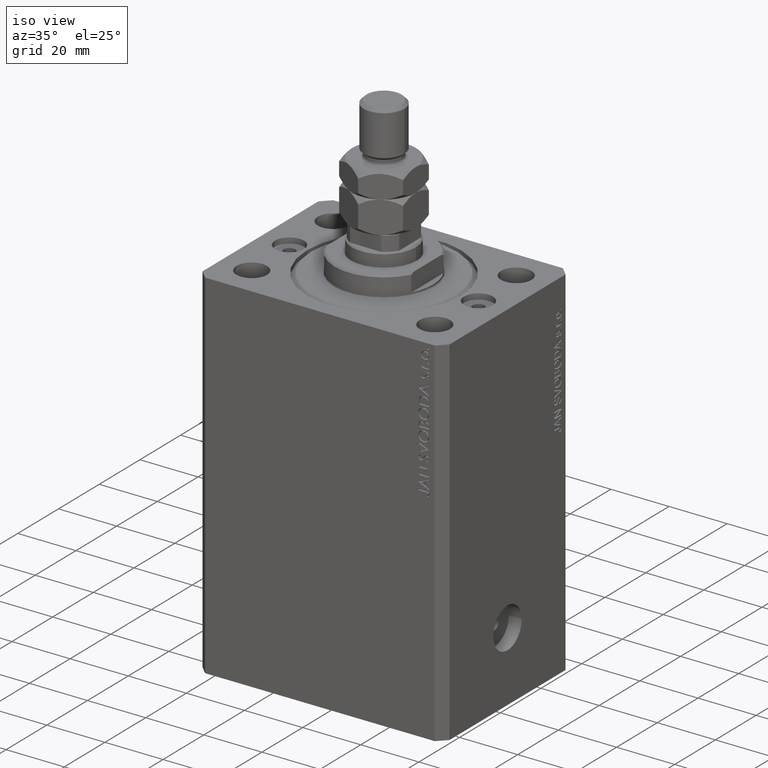
[diagram: clean part render]
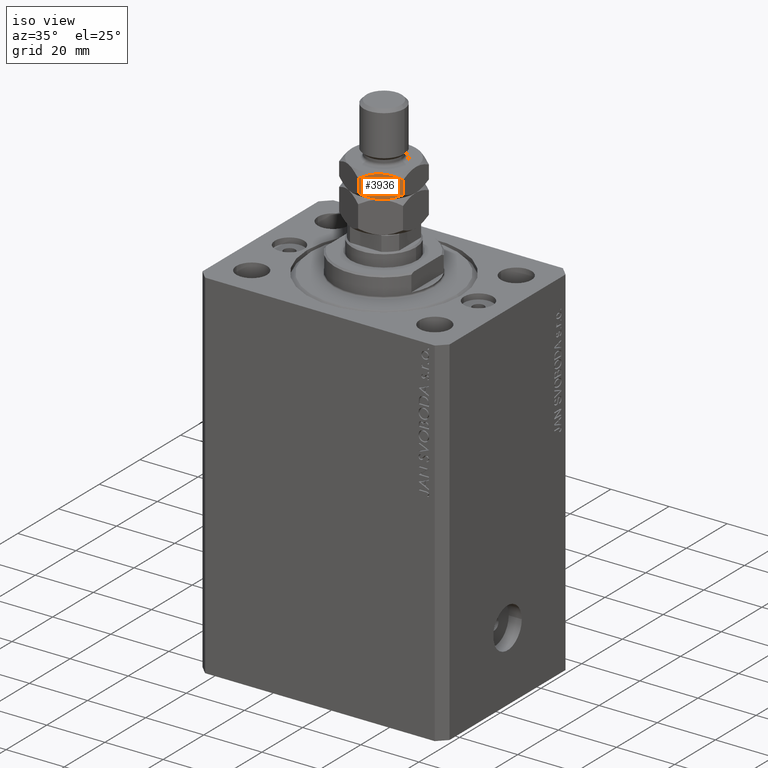
[diagram: same view with one face highlighted and labeled with its STEP entity id]
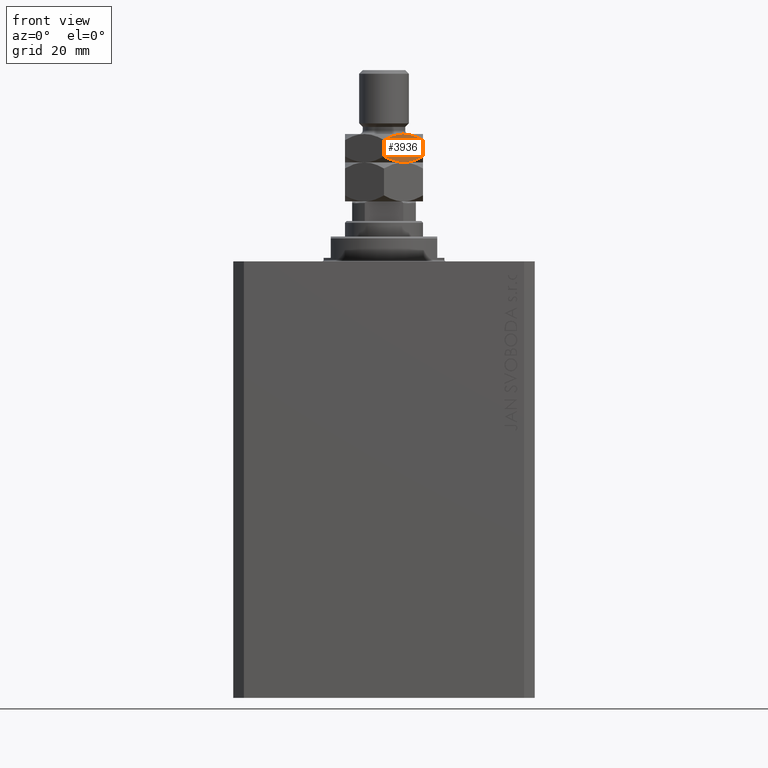
[diagram: same view with one face highlighted and labeled with its STEP entity id]
A machine part, iso view. The second image highlights one B-rep face of the part: STEP entity #3936.
A second angle (front view) of the same face is appended — the face is thin or edge-on in the first view.
In plain terms, the highlighted planar face has unit normal (-0.5, 0.866, 0).
Its self-contained STEP definition (entity closure, byte-faithful):
#305 = B_SPLINE_CURVE_WITH_KNOTS ( 'NONE', 3,
 ( #18980, #29643, #26168, #12006, #37303, #8980 ),
 .UNSPECIFIED., .F., .F.,
 ( 4, 2, 4 ),
 ( 0.006583488920348300362, 0.009852050593448711396, 0.01312061226654912330 ),
 .UNSPECIFIED. ) ;
#1846 = CARTESIAN_POINT ( 'NONE',  ( 10.13752086928278295, -6.848805519375900985, 12.20375336388174681 ) ) ;
#2073 = CARTESIAN_POINT ( 'NONE',  ( 7.420105971005177103, -8.417705742396377033, 11.20812207486707557 ) ) ;
#2301 = CARTESIAN_POINT ( 'NONE',  ( 6.470625887979892354, -8.965888323921216596, 11.04365929743512531 ) ) ;
#2330 = DIRECTION ( 'NONE',  ( -0.8660254037844384856, -0.5000000000000002220, 0.000000000000000000 ) ) ;
#2758 = CARTESIAN_POINT ( 'NONE',  ( 10.99999999999999645, -6.350852961085881709, 12.70170592217176164 ) ) ;
#3404 = VERTEX_POINT ( 'NONE', #27106 ) ;
#3618 = ORIENTED_EDGE ( 'NONE', *, *, #36333, .F. ) ;
#3936 = ADVANCED_FACE ( 'NONE', ( #30653 ), #44817, .F. ) ;
#5399 = CARTESIAN_POINT ( 'NONE',  ( 10.99999999999999645, -6.350852961085881709, 17.29829407782823480 ) ) ;
#7438 = B_SPLINE_CURVE_WITH_KNOTS ( 'NONE', 3,
 ( #19099, #12354, #40913, #40222, #8419, #5399 ),
 .UNSPECIFIED., .F., .F.,
 ( 4, 2, 4 ),
 ( 0.006583488920348303831, 0.009852050593448713131, 0.01312061226654912330 ),
 .UNSPECIFIED. ) ;
#8419 = CARTESIAN_POINT ( 'NONE',  ( 10.13851939750335163, -6.848229018838960513, 17.79567013558139621 ) ) ;
#8710 = CARTESIAN_POINT ( 'NONE',  ( 5.499999999999998224, -9.526279441628817679, 19.00000000000000000 ) ) ;
#8980 = CARTESIAN_POINT ( 'NONE',  ( -6.797443497229144639E-16, -12.70170592217176697, 12.70170592217176697 ) ) ;
#9939 = ORIENTED_EDGE ( 'NONE', *, *, #11047, .F. ) ;
#11047 = EDGE_CURVE ( 'NONE', #30529, #44411, #23847, .T. ) ;
#12006 = CARTESIAN_POINT ( 'NONE',  ( 1.748214531935804894, -11.69237379155740975, 11.77768480452202837 ) ) ;
#12354 = CARTESIAN_POINT ( 'NONE',  ( 6.456670474420574735, -8.973945485696335211, 18.99999999999999289 ) ) ;
#12422 = CARTESIAN_POINT ( 'NONE',  ( 4.529374112020106757, -10.08667055933643830, 18.95634070256486936 ) ) ;
#12735 = CARTESIAN_POINT ( 'NONE',  ( 5.499999999999998224, -9.526279441628817679, 19.00000000000000000 ) ) ;
#13012 = DIRECTION ( 'NONE',  ( -0.5000000000000003331, 0.8660254037844385966, 0.000000000000000000 ) ) ;
#13082 = CARTESIAN_POINT ( 'NONE',  ( -1.114322647986502597E-15, -12.70170592217176697, 17.29829407782823125 ) ) ;
#17370 = EDGE_CURVE ( 'NONE', #44411, #25275, #7438, .T. ) ;
#17888 = EDGE_LOOP ( 'NONE', ( #23508, #38238, #33473, #9939, #35118, #3618 ) ) ;
#18364 = EDGE_CURVE ( 'NONE', #30529, #34936, #30302, .T. ) ;
#18791 = EDGE_CURVE ( 'NONE', #25275, #3404, #39895, .T. ) ;
#18980 = CARTESIAN_POINT ( 'NONE',  ( 5.499999999999994671, -9.526279441628823008, 11.00000000000000000 ) ) ;
#19099 = CARTESIAN_POINT ( 'NONE',  ( 5.499999999999998224, -9.526279441628817679, 19.00000000000000000 ) ) ;
#19633 = CARTESIAN_POINT ( 'NONE',  ( 3.115032419653386064, -10.90324111615047187, 18.67178078790958295 ) ) ;
#20889 = CARTESIAN_POINT ( 'NONE',  ( -1.239917741184855327E-15, -12.70170592217176697, 19.00000000000000000 ) ) ;
#21340 = DIRECTION ( 'NONE',  ( -0.000000000000000000, -0.000000000000000000, -1.000000000000000000 ) ) ;
#21594 = CARTESIAN_POINT ( 'NONE',  ( -6.797443497229144639E-16, -12.70170592217176697, 12.70170592217176697 ) ) ;
#22239 = CARTESIAN_POINT ( 'NONE',  ( 10.99999999999999645, -6.350852961085881709, 19.00000000000000000 ) ) ;
#22518 = CARTESIAN_POINT ( 'NONE',  ( 5.499999999999994671, -9.526279441628823008, 11.00000000000000000 ) ) ;
#22958 = CARTESIAN_POINT ( 'NONE',  ( 5.499999999999994671, -9.526279441628823008, 11.00000000000000000 ) ) ;
#23508 = ORIENTED_EDGE ( 'NONE', *, *, #36059, .F. ) ;
#23778 = CARTESIAN_POINT ( 'NONE',  ( -1.239917741184855327E-15, -12.70170592217176697, 19.00000000000000000 ) ) ;
#23847 = B_SPLINE_CURVE_WITH_KNOTS ( 'NONE', 3,
 ( #37266, #40521, #43765, #19633, #26586, #12422, #34015, #8710 ),
 .UNSPECIFIED., .F., .F.,
 ( 4, 2, 2, 4 ),
 ( 2.544311317622334175E-07, 0.003291871675740033840, 0.004937680298044169920, 0.006583488920348303831 ),
 .UNSPECIFIED. ) ;
#25275 = VERTEX_POINT ( 'NONE', #43123 ) ;
#26168 = CARTESIAN_POINT ( 'NONE',  ( 3.602926119288149653, -10.62155555733041901, 11.16890860836476307 ) ) ;
#26204 = VERTEX_POINT ( 'NONE', #22518 ) ;
#26450 = CARTESIAN_POINT ( 'NONE',  ( 7.884967580346608607, -8.149317767107175925, 11.32821921209040283 ) ) ;
#26586 = CARTESIAN_POINT ( 'NONE',  ( 3.579894028994818900, -10.63485314086127076, 18.79187792513291910 ) ) ;
#27106 = CARTESIAN_POINT ( 'NONE',  ( 10.99999999999999645, -6.350852961085881709, 12.70170592217176164 ) ) ;
#27143 = CARTESIAN_POINT ( 'NONE',  ( 9.255521992360788985, -7.358027808391761404, 11.78062338754677718 ) ) ;
#27432 = B_SPLINE_CURVE_WITH_KNOTS ( 'NONE', 3,
 ( #2758, #1846, #27143, #26450, #2073, #2301, #44319, #22958 ),
 .UNSPECIFIED., .F., .F.,
 ( 4, 2, 2, 4 ),
 ( 2.544311317614349830E-07, 0.003291871675740029504, 0.004937680298044164716, 0.006583488920348300362 ),
 .UNSPECIFIED. ) ;
#29643 = CARTESIAN_POINT ( 'NONE',  ( 4.543329525579420824, -10.07861339756131080, 11.00000000000000888 ) ) ;
#30302 = LINE ( 'NONE', #23778, #30532 ) ;
#30529 = VERTEX_POINT ( 'NONE', #13082 ) ;
#30532 = VECTOR ( 'NONE', #34482, 1000.000000000000000 ) ;
#30653 = FACE_OUTER_BOUND ( 'NONE', #17888, .T. ) ;
#32057 = VECTOR ( 'NONE', #21340, 1000.000000000000000 ) ;
#33473 = ORIENTED_EDGE ( 'NONE', *, *, #17370, .F. ) ;
#34015 = CARTESIAN_POINT ( 'NONE',  ( 5.018290712253357988, -9.804394428580488707, 18.99999999999999645 ) ) ;
#34482 = DIRECTION ( 'NONE',  ( -0.000000000000000000, -0.000000000000000000, -1.000000000000000000 ) ) ;
#34936 = VERTEX_POINT ( 'NONE', #21594 ) ;
#35118 = ORIENTED_EDGE ( 'NONE', *, *, #18364, .T. ) ;
#36059 = EDGE_CURVE ( 'NONE', #3404, #26204, #27432, .T. ) ;
#36333 = EDGE_CURVE ( 'NONE', #26204, #34936, #305, .T. ) ;
#37266 = CARTESIAN_POINT ( 'NONE',  ( -1.114322647986502597E-15, -12.70170592217176697, 17.29829407782823125 ) ) ;
#37303 = CARTESIAN_POINT ( 'NONE',  ( 0.8614806024966414899, -12.20432986441868906, 12.20432986441860912 ) ) ;
#38238 = ORIENTED_EDGE ( 'NONE', *, *, #18791, .F. ) ;
#39895 = LINE ( 'NONE', #22239, #32057 ) ;
#40222 = CARTESIAN_POINT ( 'NONE',  ( 9.251785468064186446, -7.360185091700238935, 18.22231519547796097 ) ) ;
#40521 = CARTESIAN_POINT ( 'NONE',  ( 0.8624791307172129384, -12.20375336388175036, 17.79624663611825142 ) ) ;
#40913 = CARTESIAN_POINT ( 'NONE',  ( 7.397073880711843685, -8.431003325927234116, 18.83109139163523693 ) ) ;
#43123 = CARTESIAN_POINT ( 'NONE',  ( 10.99999999999999645, -6.350852961085881709, 17.29829407782823480 ) ) ;
#43765 = CARTESIAN_POINT ( 'NONE',  ( 1.744478007639206574, -11.69453107486588728, 18.21937661245321749 ) ) ;
#44319 = CARTESIAN_POINT ( 'NONE',  ( 5.981709287746636683, -9.248164454677160862, 11.00000000000000355 ) ) ;
#44411 = VERTEX_POINT ( 'NONE', #12735 ) ;
#44817 = PLANE ( 'NONE',  #45020 ) ;
#45020 = AXIS2_PLACEMENT_3D ( 'NONE', #20889, #13012, #2330 ) ;